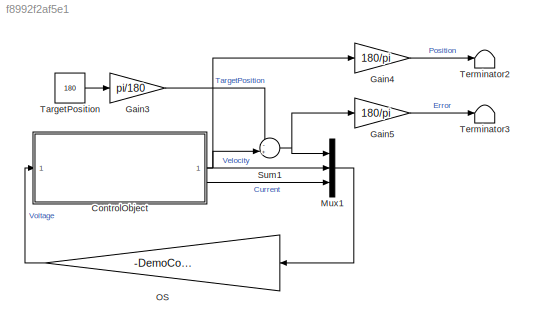
MODEL slx_f8992f2af5e1
KIND model
CONFIG AbsTol = 1e-3
CONFIG EnableMultiTasking = on
CONFIG FixedStep = auto
CONFIG MaxStep = 0.01
CONFIG MinStep = auto
CONFIG RelTol = 1e-3
CONFIG SampleTimeConstraint = Unconstrained
CONFIG SolverName = VariableStepAuto
CONFIG StartTime = 0.0
CONFIG StopTime = 10.0
BLOCK [SubSystem] ControlObject
  ReferencedSubsystem = ControlObject
BLOCK [Gain] Gain3
  Gain = pi/180
BLOCK [Gain] Gain4
  Gain = 180/pi
BLOCK [Gain] Gain5
  Gain = 180/pi
BLOCK [Mux] Mux1
  DisplayOption = bar
  Inputs = 3
BLOCK [Gain] OS
  Gain = -DemoControllers.LQRParams.K
  Multiplication = Matrix(K*u)
BLOCK [Sum] Sum1
  Inputs = -+|
BLOCK [Constant] TargetPosition
  Value = 180
BLOCK [Terminator] Terminator2
BLOCK [Terminator] Terminator3
NET ControlObject:1 -> Gain4:1, Sum1:2
LINE ControlObject:2 -> Mux1:2
LINE ControlObject:3 -> Mux1:3
LINE Gain3:1 -> Sum1:1
LINE Gain4:1 -> Terminator2:1
LINE Gain5:1 -> Terminator3:1
LINE Mux1:1 -> OS:1
LINE OS:1 -> ControlObject:1
NET Sum1:1 -> Gain5:1, Mux1:1
LINE TargetPosition:1 -> Gain3:1
note: NET lines group one-source signal fan-out (src -> all destinations, sorted); 1:1 wires keep LINE
